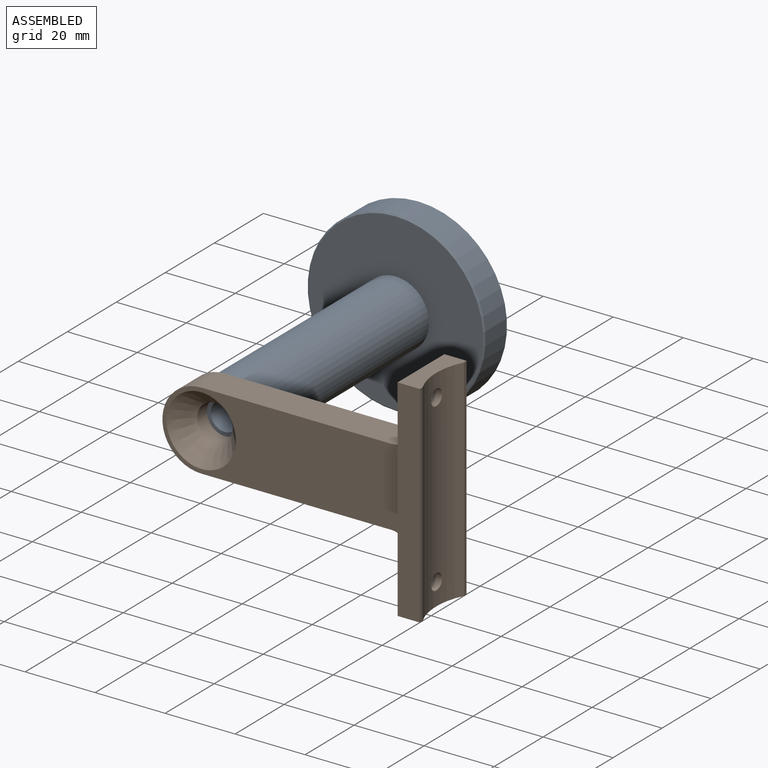
[diagram: assembled view]
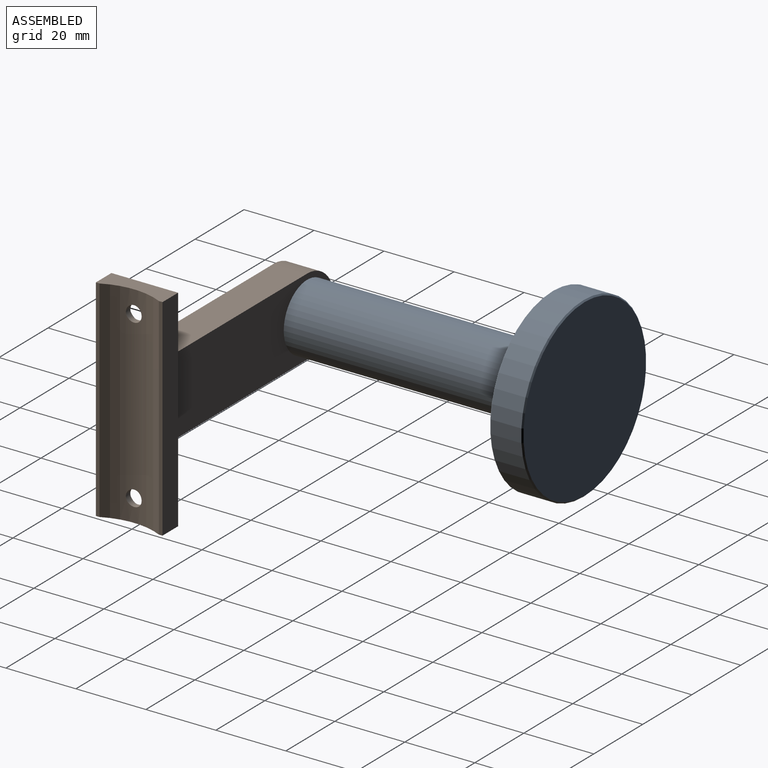
[diagram: assembled view, second angle]
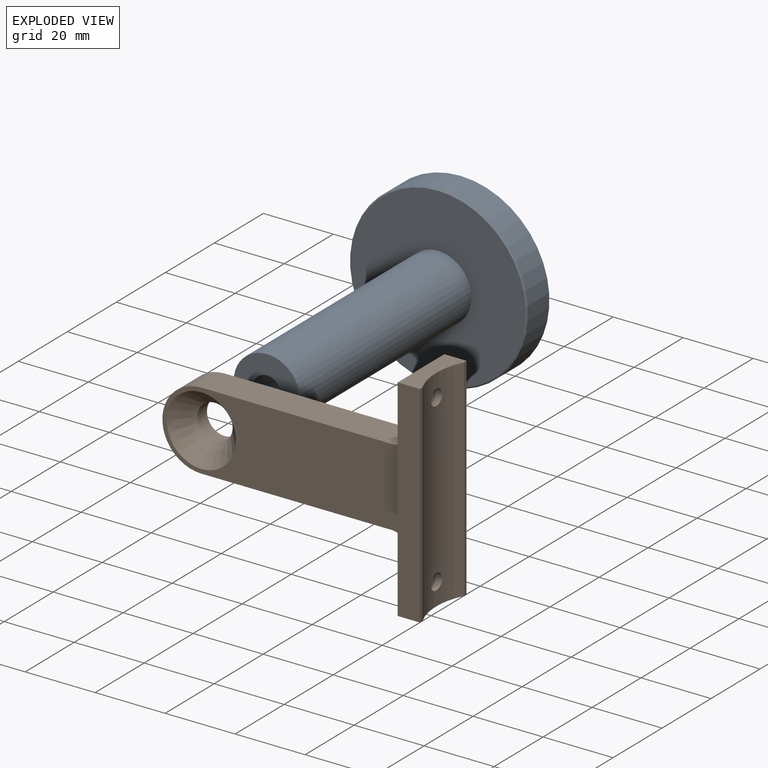
[diagram: exploded view]
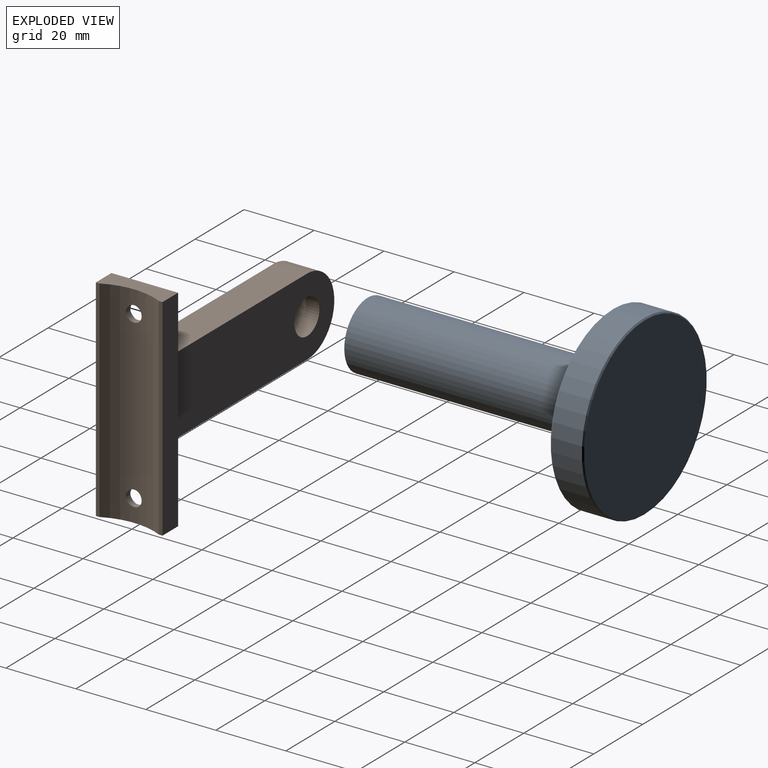
[diagram: exploded view, second angle]
ASSEMBLY  parts=2 mates=2
PART A: 9 faces, bbox 50.8x79.4x50.8 mm
  f0: cylinder r=25.4mm len=50.8mm, axis (0,1,0), area 1398.5mm2, adj f7,f8
  f1: plane 50.04x50.04mm, normal (0,-1,0), area 1681.5mm2, adj f3,f8
  f2: plane 50.04x50.04mm, normal (0,1,0), area 1966.5mm2, adj f7
  f3: cylinder r=9.53mm len=69.85mm, axis (0,1,0), area 4180.3mm2, adj f1,f4
  f4: plane 19.05x19.05mm, normal (0,-1,0), area 235.5mm2, adj f3,f6
  f5: cone r=0mm half-angle=59deg, axis (0,-1,0), area 57.7mm2, adj f6
  f6: cylinder r=3.97mm len=12.7mm, axis (0,-1,0), area 316.7mm2, adj f4,f5
  f7: cone r=25.4mm half-angle=45deg, axis (0,-1,0), area 85.3mm2, adj f0,f2
  f8: cone r=25.02mm half-angle=45deg, axis (0,1,0), area 85.3mm2, adj f0,f1
PART B: 21 faces, bbox 19.1x60.3x76.9 mm
  f0: cylinder r=19.05mm len=60.33mm, axis (0,1,0), area 1029.8mm2, adj f8,f9,f11,f12,f17,f19
  f1: plane 54.38x9.53mm, normal (0,1,0), area 518mm2, adj f3,f4,f5,f15
  f2: plane 54.38x9.53mm, normal (0,-1,0), area 518mm2, adj f3,f4,f5,f16
  f3: cylinder r=11.11mm len=22.23mm, axis (-1,0,0), area 332.5mm2, adj f1,f2,f4,f5
  f4: plane 70.57x32.39mm, normal (1,0,0), area 1217.5mm2, adj f1,f2,f3,f6,f14,f15,f16
  f5: plane 70.57x32.39mm, normal (-1,0,0), area 1446.7mm2, adj f1,f2,f3,f6,f13,f15,f16
  f6: plane 60.33x19.05mm, normal (0,0,-1), area 710.1mm2, adj f4,f5,f7,f10,f11,f12,f15,f16
  f7: plane 60.33x6.35mm, normal (1,0,0), area 383.1mm2, adj f6,f8,f11,f12
  f8: plane 60.33x1.04mm, normal (0,0,1), area 62.5mm2, adj f0,f7,f11,f12
  f9: plane 60.33x1.04mm, normal (0,0,1), area 62.5mm2, adj f0,f10,f11,f12
  f10: plane 60.33x6.35mm, normal (-1,0,0), area 383.1mm2, adj f6,f9,f11,f12
  f11: plane 19.05x6.35mm, normal (0,-1,0), area 98.1mm2, adj f0,f6,f7,f8,f9,f10
  f12: plane 19.05x6.35mm, normal (0,1,0), area 98.1mm2, adj f0,f6,f7,f8,f9,f10
  f13: cylinder r=5.04mm len=10.08mm, axis (1,0,0), area 124mm2, adj f5,f14
  f14: cone r=5.04mm half-angle=41deg, axis (1,0,0), area 349.4mm2, adj f4,f13
  f15: cylinder r=5.08mm len=9.53mm, axis (-1,0,0), area 76mm2, adj f1,f4,f5,f6
  f16: cylinder r=5.08mm len=9.53mm, axis (1,0,0), area 76mm2, adj f2,f4,f5,f6
  f17: cylinder r=2.25mm len=4.5mm, axis (0,0,-1), area 24.9mm2, adj f0,f18
  f18: cone r=2.25mm half-angle=41deg, axis (0,0,-1), area 75.3mm2, adj f6,f17
  f19: cylinder r=2.25mm len=4.5mm, axis (0,0,-1), area 24.9mm2, adj f0,f20
  f20: cone r=2.25mm half-angle=41deg, axis (0,0,-1), area 75.3mm2, adj f6,f19
PLACE A t=(-63.13,-34.76,6.44)mm
PLACE B rot(axis=(-0.58,0.58,-0.58),120deg) t=(-63.13,-118.9,6.44)mm
MATE planar B.f5 <-> A.f0  axis (0,1,0) through (-35.94,-114.14,-4.67)mm
MATE cylindrical B.f3 <-> A.f0  axis (0,1,0) through (-63.13,-114.14,6.44)mm
